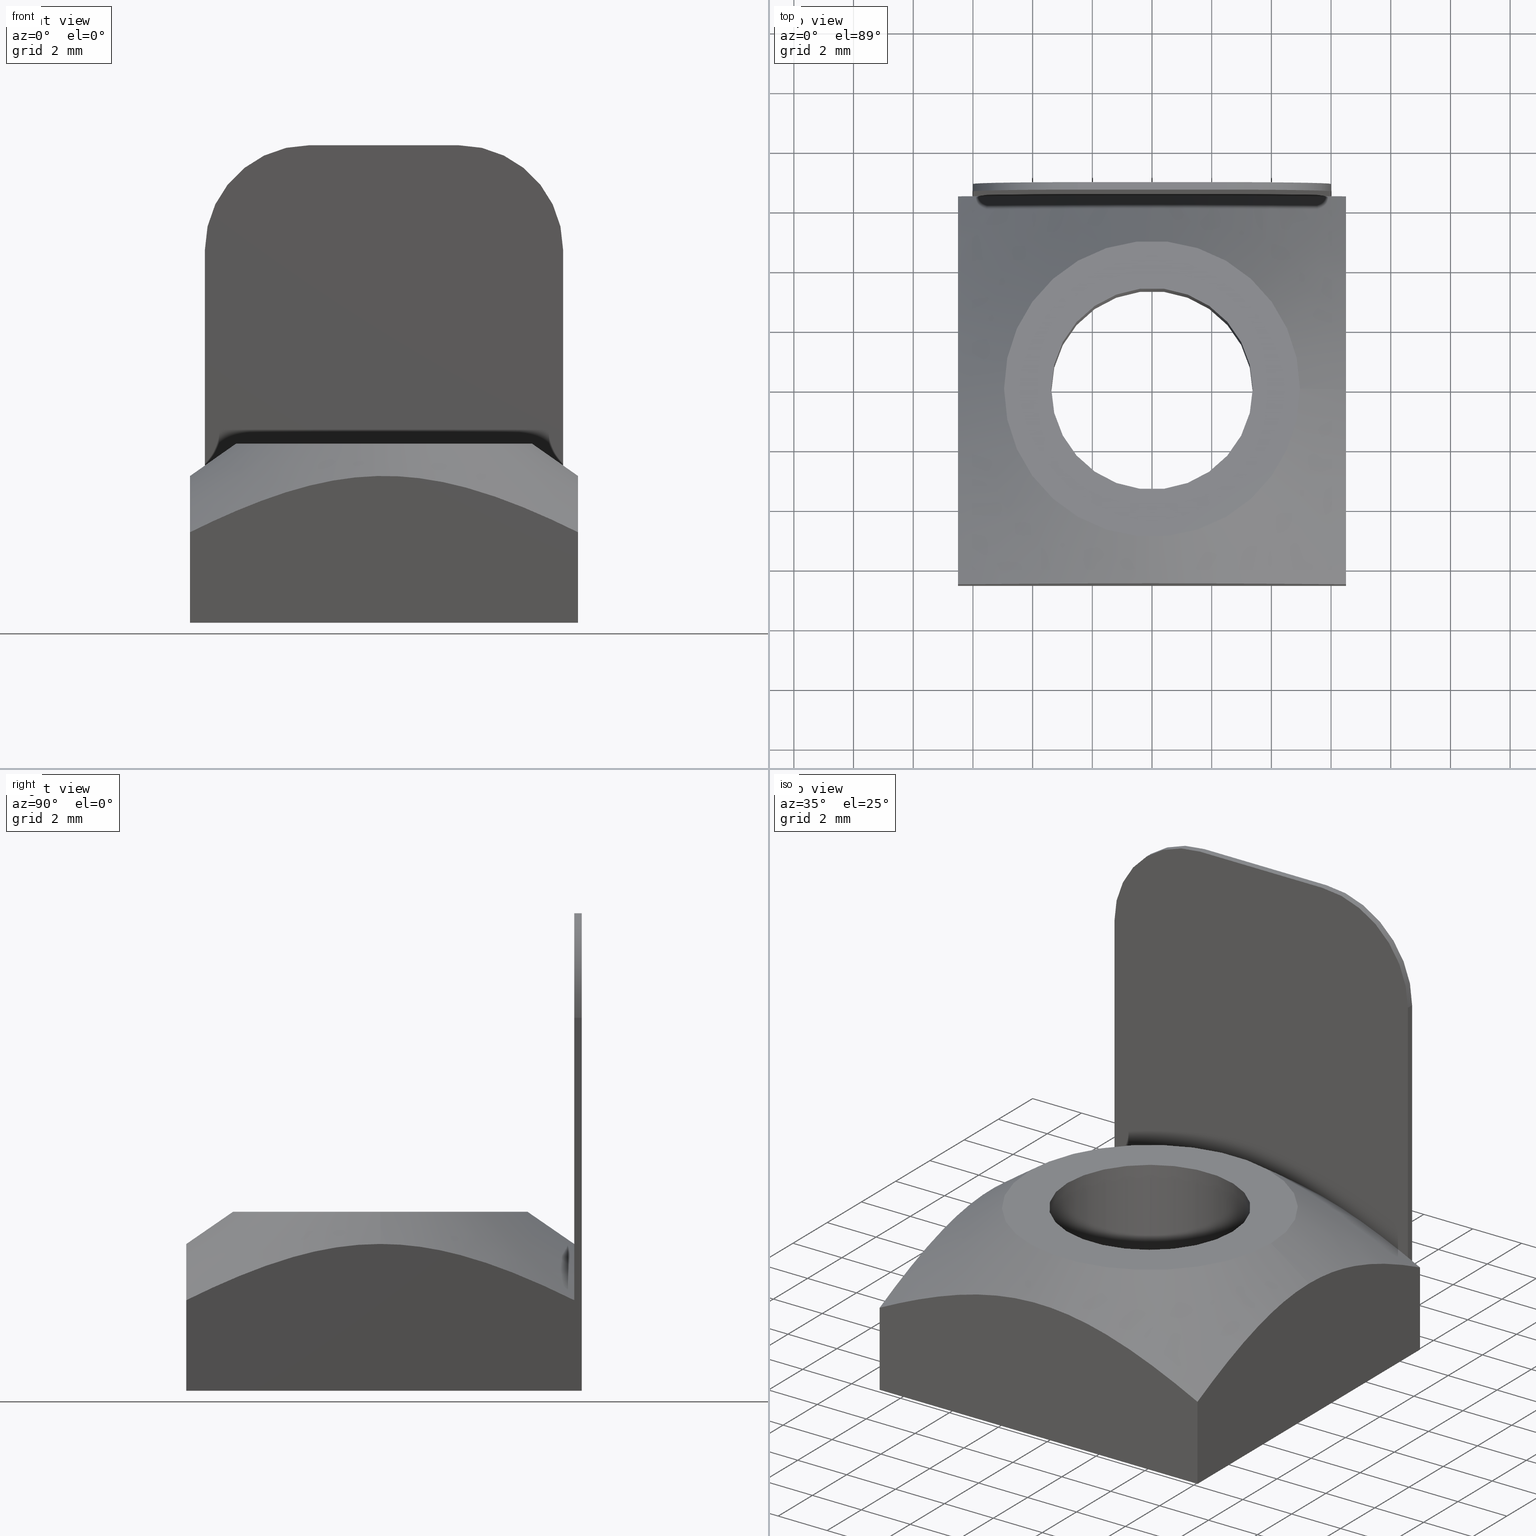
[diagram: canonical four-view strip — front | top / right | iso, engineering-drawing reading convention]
A machine part, canonical four-view strip (front | top / right | iso — engineering-drawing reading convention). The complete STEP part file that produces these views, byte-faithful:
ISO-10303-21;
HEADER;
/****************************************************************
 * Generated by software with PDE/Lib inside                    *
 * PDElib Version v4.4, created Mon 02/23/2004                  *
 * International Technegroup Inc. (www.iti-oh.com)              *
 ****************************************************************/
FILE_DESCRIPTION(('STEP AP203'),'2;1');
FILE_NAME('26.059.00.stp','2011-03-21T16:15:43',(''),(''),'2009.3.110','THINKDESIGN','');
FILE_SCHEMA(('CONFIG_CONTROL_DESIGN'));
ENDSEC;
DATA;
#2=CARTESIAN_POINT('',(-6.499999999973852,6.499999999974079,6.0));
#3=DIRECTION('',(1.0,0.0,0.0));
#4=DIRECTION('',(0.0,-1.0,0.0));
#5=AXIS2_PLACEMENT_3D('',#2,#3,#4);
#6=PLANE('',#5);
#7=CARTESIAN_POINT('',(-6.499999999973852,6.499999999974079,0.0));
#8=VERTEX_POINT('',#7);
#9=CARTESIAN_POINT('',(-6.499999999973852,-6.499999999974079,0.0));
#10=VERTEX_POINT('',#9);
#11=CARTESIAN_POINT('',(-6.499999999973852,6.499999999974079,0.0));
#12=DIRECTION('',(0.0,-1.0,0.0));
#13=VECTOR('',#12,12.999999999947995);
#14=LINE('',#11,#13);
#15=EDGE_CURVE('',#8,#10,#14,.T.);
#16=ORIENTED_EDGE('',*,*,#15,.T.);
#17=CARTESIAN_POINT('',(-6.499999999973852,-6.499999999974079,3.034437679604906));
#18=VERTEX_POINT('',#17);
#19=CARTESIAN_POINT('',(-6.499999999973852,-6.499999999974079,3.034437679604906));
#20=DIRECTION('',(0.0,0.0,-1.0));
#21=VECTOR('',#20,3.034437679604906);
#22=LINE('',#19,#21);
#23=EDGE_CURVE('',#18,#10,#22,.T.);
#24=ORIENTED_EDGE('',*,*,#23,.F.);
#25=CARTESIAN_POINT('',(-6.499999999973852,6.499999999974079,3.034437679605066));
#26=VERTEX_POINT('',#25);
#27=CARTESIAN_POINT('',(-6.499999999974079,-6.499999999974079,3.034437679604906));
#28=CARTESIAN_POINT('',(-6.499999999974079,-5.963475184198160,3.300082650377658));
#29=CARTESIAN_POINT('',(-6.499999999974307,-4.990047889132711,3.753273584885370));
#30=CARTESIAN_POINT('',(-6.499999999973625,-3.581020279305903,4.294954268033969));
#31=CARTESIAN_POINT('',(-6.499999999973397,-2.325183673445281,4.659603356991861));
#32=CARTESIAN_POINT('',(-6.499999999974307,-1.114697758100192,4.877442321284693));
#33=CARTESIAN_POINT('',(-6.499999999972943,0.091791976900822,4.946072576401956));
#34=CARTESIAN_POINT('',(-6.499999999977263,1.288091550248737,4.855365513273265));
#35=CARTESIAN_POINT('',(-6.499999999960892,2.551471572318405,4.605479998874939));
#36=CARTESIAN_POINT('',(-6.499999999977263,3.827364189698528,4.209600242583047));
#37=CARTESIAN_POINT('',(-6.499999999973170,5.174177651177615,3.668900488673288));
#38=CARTESIAN_POINT('',(-6.499999999973852,6.048409974866900,3.258029609546425));
#39=CARTESIAN_POINT('',(-6.499999999973852,6.499999999974079,3.034437679605066));
#40=B_SPLINE_CURVE_WITH_KNOTS('',3,(#27,#28,#29,#30,#31,#32,#33,#34,#35,#36,#37,#38,#39),.UNSPECIFIED.,.F.,.U.,(4,1,1,1,1,1,1,1,1,1,4),(0.0,1.796348609622032,3.219266909664040,4.525760464110747,5.714993134358735,6.903296288721289,8.143598724463887,9.306388059167453,10.761381849058354,12.146239828317164,13.658133343956399),.UNSPECIFIED.);
#41=EDGE_CURVE('',#18,#26,#40,.T.);
#42=ORIENTED_EDGE('',*,*,#41,.T.);
#43=CARTESIAN_POINT('',(-6.499999999973852,6.499999999974079,3.034437679605066));
#44=DIRECTION('',(0.0,0.0,-1.0));
#45=VECTOR('',#44,3.034437679605066);
#46=LINE('',#43,#45);
#47=EDGE_CURVE('',#26,#8,#46,.T.);
#48=ORIENTED_EDGE('',*,*,#47,.T.);
#49=EDGE_LOOP('',(#16,#24,#42,#48));
#50=FACE_OUTER_BOUND('',#49,.T.);
#51=ADVANCED_FACE('',(#50),#6,.F.);
#52=CARTESIAN_POINT('',(-6.499999999973852,-6.499999999974079,6.0));
#53=DIRECTION('',(0.0,1.0,0.0));
#54=DIRECTION('',(1.0,0.0,0.0));
#55=AXIS2_PLACEMENT_3D('',#52,#53,#54);
#56=PLANE('',#55);
#57=CARTESIAN_POINT('',(6.499999999974079,-6.499999999974079,0.0));
#58=VERTEX_POINT('',#57);
#59=CARTESIAN_POINT('',(-6.499999999973852,-6.499999999974079,0.0));
#60=DIRECTION('',(1.0,0.0,0.0));
#61=VECTOR('',#60,12.999999999947995);
#62=LINE('',#59,#61);
#63=EDGE_CURVE('',#10,#58,#62,.T.);
#64=ORIENTED_EDGE('',*,*,#63,.T.);
#65=CARTESIAN_POINT('',(6.499999999974079,-6.499999999974079,3.034437679604906));
#66=VERTEX_POINT('',#65);
#67=CARTESIAN_POINT('',(6.499999999974079,-6.499999999974079,3.034437679604906));
#68=DIRECTION('',(0.0,0.0,-1.0));
#69=VECTOR('',#68,3.034437679604906);
#70=LINE('',#67,#69);
#71=EDGE_CURVE('',#66,#58,#70,.T.);
#72=ORIENTED_EDGE('',*,*,#71,.F.);
#73=CARTESIAN_POINT('',(6.499999999974079,-6.499999999974079,3.034437679604906));
#74=CARTESIAN_POINT('',(5.963475184197932,-6.499999999974079,3.300082650377685));
#75=CARTESIAN_POINT('',(4.990047889131347,-6.499999999974534,3.753273584885145));
#76=CARTESIAN_POINT('',(3.581020279306358,-6.499999999973625,4.294954268034343));
#77=CARTESIAN_POINT('',(2.325183673444599,-6.499999999974989,4.659603356991499));
#78=CARTESIAN_POINT('',(1.114697758099510,-6.499999999973170,4.877442321284664));
#79=CARTESIAN_POINT('',(-0.091791976900140,-6.499999999974989,4.946072576401746));
#80=CARTESIAN_POINT('',(-1.288091550251238,-6.499999999977263,4.855365513273293));
#81=CARTESIAN_POINT('',(-2.551471572318178,-6.499999999962711,4.605479998874193));
#82=CARTESIAN_POINT('',(-3.827364189701029,-6.499999999977717,4.209600242582467));
#83=CARTESIAN_POINT('',(-5.174177651178525,-6.499999999973625,3.668900488673009));
#84=CARTESIAN_POINT('',(-6.048409974867354,-6.499999999974079,3.258029609546086));
#85=CARTESIAN_POINT('',(-6.499999999974079,-6.499999999974079,3.034437679604906));
#86=B_SPLINE_CURVE_WITH_KNOTS('',3,(#73,#74,#75,#76,#77,#78,#79,#80,#81,#82,#83,#84,#85),.UNSPECIFIED.,.F.,.U.,(4,1,1,1,1,1,1,1,1,1,4),(0.0,1.796348609622239,3.219266909664066,4.525760464110903,5.714993134359137,6.903296288721684,8.143598724464722,9.306388059168363,10.761381849059740,12.146239828318263,13.658133343956333),.UNSPECIFIED.);
#87=EDGE_CURVE('',#66,#18,#86,.T.);
#88=ORIENTED_EDGE('',*,*,#87,.T.);
#89=ORIENTED_EDGE('',*,*,#23,.T.);
#90=EDGE_LOOP('',(#64,#72,#88,#89));
#91=FACE_OUTER_BOUND('',#90,.T.);
#92=ADVANCED_FACE('',(#91),#56,.F.);
#93=CARTESIAN_POINT('',(6.499999999974079,-6.499999999974079,6.0));
#94=DIRECTION('',(-1.0,0.0,0.0));
#95=DIRECTION('',(0.0,1.0,0.0));
#96=AXIS2_PLACEMENT_3D('',#93,#94,#95);
#97=PLANE('',#96);
#98=CARTESIAN_POINT('',(6.499999999974079,6.499999999974079,0.0));
#99=VERTEX_POINT('',#98);
#100=CARTESIAN_POINT('',(6.499999999974079,-6.499999999973916,0.0));
#101=DIRECTION('',(0.0,1.0,0.0));
#102=VECTOR('',#101,12.999999999947995);
#103=LINE('',#100,#102);
#104=EDGE_CURVE('',#58,#99,#103,.T.);
#105=ORIENTED_EDGE('',*,*,#104,.T.);
#106=CARTESIAN_POINT('',(6.499999999974079,6.499999999974079,3.034437679604906));
#107=VERTEX_POINT('',#106);
#108=CARTESIAN_POINT('',(6.499999999974079,6.499999999974079,3.034437679604906));
#109=DIRECTION('',(0.0,0.0,-1.0));
#110=VECTOR('',#109,3.034437679604906);
#111=LINE('',#108,#110);
#112=EDGE_CURVE('',#107,#99,#111,.T.);
#113=ORIENTED_EDGE('',*,*,#112,.F.);
#114=CARTESIAN_POINT('',(6.499999999974079,0.0,4.919668161812596));
#115=VERTEX_POINT('',#114);
#116=CARTESIAN_POINT('',(6.499999999974079,6.499999999974079,3.034437679604906));
#117=CARTESIAN_POINT('',(6.499999999974079,5.882877524653850,3.339988284347234));
#118=CARTESIAN_POINT('',(6.499999999974534,4.809413192198008,3.835425012968807));
#119=CARTESIAN_POINT('',(6.499999999973852,3.186651324770082,4.430488239795752));
#120=CARTESIAN_POINT('',(6.499999999974989,1.644250270507200,4.819853950623344));
#121=CARTESIAN_POINT('',(6.499999999974079,0.548660503574865,4.919668161812595));
#122=CARTESIAN_POINT('',(6.499999999974079,0.0,4.919668161812595));
#123=B_SPLINE_CURVE_WITH_KNOTS('',3,(#116,#117,#118,#119,#120,#121,#122),.UNSPECIFIED.,.F.,.U.,(4,1,1,1,4),(0.0,2.066340973610342,3.543609594805800,5.181100455068718,6.829066620924860),.UNSPECIFIED.);
#124=EDGE_CURVE('',#107,#115,#123,.T.);
#125=ORIENTED_EDGE('',*,*,#124,.T.);
#126=CARTESIAN_POINT('',(6.499999999974079,0.0,4.919668161812595));
#127=CARTESIAN_POINT('',(6.499999999974079,-0.548660503574865,4.919668161812595));
#128=CARTESIAN_POINT('',(6.499999999974762,-1.644250270504926,4.819853950623344));
#129=CARTESIAN_POINT('',(6.499999999973852,-3.186651324770082,4.430488239795752));
#130=CARTESIAN_POINT('',(6.499999999974534,-4.809413192196644,3.835425012968807));
#131=CARTESIAN_POINT('',(6.499999999974079,-5.882877524653850,3.339988284347234));
#132=CARTESIAN_POINT('',(6.499999999974079,-6.499999999974079,3.034437679604906));
#133=B_SPLINE_CURVE_WITH_KNOTS('',3,(#126,#127,#128,#129,#130,#131,#132),.UNSPECIFIED.,.F.,.U.,(4,1,1,1,4),(0.0,1.647966165856141,3.285457026119058,4.762725647314515,6.829066620924857),.UNSPECIFIED.);
#134=EDGE_CURVE('',#115,#66,#133,.T.);
#135=ORIENTED_EDGE('',*,*,#134,.T.);
#136=ORIENTED_EDGE('',*,*,#71,.T.);
#137=EDGE_LOOP('',(#105,#113,#125,#135,#136));
#138=FACE_OUTER_BOUND('',#137,.T.);
#139=ADVANCED_FACE('',(#138),#97,.F.);
#140=CARTESIAN_POINT('',(6.499999999974079,6.499999999974079,6.0));
#141=DIRECTION('',(0.0,-1.0,0.0));
#142=DIRECTION('',(-1.0,0.0,0.0));
#143=AXIS2_PLACEMENT_3D('',#140,#141,#142);
#144=PLANE('',#143);
#145=ORIENTED_EDGE('',*,*,#47,.F.);
#146=CARTESIAN_POINT('',(-6.499999999973852,6.499999999974079,3.034437679605066));
#147=CARTESIAN_POINT('',(-6.048409974867354,6.499999999974079,3.258029609546206));
#148=CARTESIAN_POINT('',(-5.174177651177615,6.499999999972715,3.668900488673024));
#149=CARTESIAN_POINT('',(-3.827364189701939,6.499999999976353,4.209600242582472));
#150=CARTESIAN_POINT('',(-2.551471572317269,6.499999999962711,4.605479998874186));
#151=CARTESIAN_POINT('',(-1.288091550251011,6.499999999977263,4.855365513273293));
#152=CARTESIAN_POINT('',(-0.091791976899913,6.499999999974534,4.946072576401746));
#153=CARTESIAN_POINT('',(1.114697758099283,6.499999999973170,4.877442321284664));
#154=CARTESIAN_POINT('',(2.325183673445054,6.499999999974989,4.659603356991500));
#155=CARTESIAN_POINT('',(3.581020279306813,6.499999999974079,4.294954268034344));
#156=CARTESIAN_POINT('',(4.990047889131802,6.499999999974534,3.753273584885147));
#157=CARTESIAN_POINT('',(5.963475184197932,6.499999999974079,3.300082650377685));
#158=CARTESIAN_POINT('',(6.499999999974079,6.499999999974079,3.034437679604906));
#159=B_SPLINE_CURVE_WITH_KNOTS('',3,(#146,#147,#148,#149,#150,#151,#152,#153,#154,#155,#156,#157,#158),.UNSPECIFIED.,.F.,.U.,(4,1,1,1,1,1,1,1,1,1,4),(0.0,1.511893515637792,2.896751494896321,4.351745284787702,5.514534619491342,6.754837055234381,7.943140209596928,9.132372879845162,10.438866434292001,11.861784734333828,13.658133343956067),.UNSPECIFIED.);
#160=EDGE_CURVE('',#26,#107,#159,.T.);
#161=ORIENTED_EDGE('',*,*,#160,.T.);
#162=ORIENTED_EDGE('',*,*,#112,.T.);
#163=CARTESIAN_POINT('',(6.499999999974143,6.499999999974079,0.0));
#164=DIRECTION('',(-1.0,0.0,0.0));
#165=VECTOR('',#164,12.999999999947995);
#166=LINE('',#163,#165);
#167=EDGE_CURVE('',#99,#8,#166,.T.);
#168=ORIENTED_EDGE('',*,*,#167,.T.);
#169=EDGE_LOOP('',(#145,#161,#162,#168));
#170=FACE_OUTER_BOUND('',#169,.T.);
#171=ADVANCED_FACE('',(#170),#144,.F.);
#172=CARTESIAN_POINT('',(-7.800004734302775,-7.800004734271170,6.0));
#173=DIRECTION('',(0.0,0.0,1.0));
#174=DIRECTION('',(1.0,0.0,0.0));
#175=AXIS2_PLACEMENT_3D('',#172,#173,#174);
#176=PLANE('',#175);
#177=CARTESIAN_POINT('',(-4.957126238646652,0.0,6.0));
#178=VERTEX_POINT('',#177);
#179=CARTESIAN_POINT('',(4.957126238646652,0.0,6.0));
#180=VERTEX_POINT('',#179);
#181=CARTESIAN_POINT('',(0.0,0.0,6.0));
#182=DIRECTION('',(0.0,0.0,-1.0));
#183=DIRECTION('',(1.0,0.0,0.0));
#184=AXIS2_PLACEMENT_3D('',#181,#182,#183);
#185=CIRCLE('',#184,4.957126238646652);
#186=EDGE_CURVE('',#178,#180,#185,.T.);
#187=ORIENTED_EDGE('',*,*,#186,.F.);
#188=CARTESIAN_POINT('',(0.0,0.0,6.0));
#189=DIRECTION('',(0.0,0.0,-1.0));
#190=DIRECTION('',(1.0,0.0,0.0));
#191=AXIS2_PLACEMENT_3D('',#188,#189,#190);
#192=CIRCLE('',#191,4.957126238646652);
#193=EDGE_CURVE('',#180,#178,#192,.T.);
#194=ORIENTED_EDGE('',*,*,#193,.F.);
#195=EDGE_LOOP('',(#187,#194));
#196=FACE_OUTER_BOUND('',#195,.T.);
#197=CARTESIAN_POINT('',(-3.375000000000000,0.0,6.0));
#198=VERTEX_POINT('',#197);
#199=CARTESIAN_POINT('',(3.375000000000000,0.0,6.0));
#200=VERTEX_POINT('',#199);
#201=CARTESIAN_POINT('',(0.0,0.0,6.0));
#202=DIRECTION('',(0.0,0.0,1.0));
#203=DIRECTION('',(1.0,0.0,0.0));
#204=AXIS2_PLACEMENT_3D('',#201,#202,#203);
#205=CIRCLE('',#204,3.375000000000000);
#206=EDGE_CURVE('',#198,#200,#205,.T.);
#207=ORIENTED_EDGE('',*,*,#206,.F.);
#208=CARTESIAN_POINT('',(0.0,0.0,6.0));
#209=DIRECTION('',(0.0,0.0,1.0));
#210=DIRECTION('',(1.0,0.0,0.0));
#211=AXIS2_PLACEMENT_3D('',#208,#209,#210);
#212=CIRCLE('',#211,3.375000000000000);
#213=EDGE_CURVE('',#200,#198,#212,.T.);
#214=ORIENTED_EDGE('',*,*,#213,.F.);
#215=EDGE_LOOP('',(#207,#214));
#216=FACE_BOUND('',#215,.T.);
#217=ADVANCED_FACE('',(#196,#216),#176,.T.);
#218=CARTESIAN_POINT('',(-7.800004734302775,-7.800004734271170,0.0));
#219=DIRECTION('',(0.0,0.0,1.0));
#220=DIRECTION('',(1.0,0.0,0.0));
#221=AXIS2_PLACEMENT_3D('',#218,#219,#220);
#222=PLANE('',#221);
#223=ORIENTED_EDGE('',*,*,#167,.F.);
#224=ORIENTED_EDGE('',*,*,#104,.F.);
#225=ORIENTED_EDGE('',*,*,#63,.F.);
#226=ORIENTED_EDGE('',*,*,#15,.F.);
#227=EDGE_LOOP('',(#223,#224,#225,#226));
#228=FACE_OUTER_BOUND('',#227,.T.);
#229=CARTESIAN_POINT('',(-3.375000000000000,0.0,0.0));
#230=VERTEX_POINT('',#229);
#231=CARTESIAN_POINT('',(3.375000000000000,0.0,0.0));
#232=VERTEX_POINT('',#231);
#233=CARTESIAN_POINT('',(0.0,0.0,0.0));
#234=DIRECTION('',(0.0,0.0,-1.0));
#235=DIRECTION('',(1.0,0.0,0.0));
#236=AXIS2_PLACEMENT_3D('',#233,#234,#235);
#237=CIRCLE('',#236,3.375000000000000);
#238=EDGE_CURVE('',#230,#232,#237,.T.);
#239=ORIENTED_EDGE('',*,*,#238,.F.);
#240=CARTESIAN_POINT('',(0.0,0.0,0.0));
#241=DIRECTION('',(0.0,0.0,-1.0));
#242=DIRECTION('',(1.0,0.0,0.0));
#243=AXIS2_PLACEMENT_3D('',#240,#241,#242);
#244=CIRCLE('',#243,3.375000000000000);
#245=EDGE_CURVE('',#232,#230,#244,.T.);
#246=ORIENTED_EDGE('',*,*,#245,.F.);
#247=EDGE_LOOP('',(#239,#246));
#248=FACE_BOUND('',#247,.T.);
#249=ADVANCED_FACE('',(#228,#248),#222,.F.);
#250=CARTESIAN_POINT('',(4.957126238621409,0.0,6.000000000017701));
#251=CARTESIAN_POINT('',(4.957126238621409,4.957126238621409,6.000000000017701));
#252=CARTESIAN_POINT('',(0.0,4.957126238621409,6.000000000017701));
#253=CARTESIAN_POINT('',(-4.957126238621409,4.957126238621409,6.000000000017701));
#254=CARTESIAN_POINT('',(-4.957126238621409,0.0,6.000000000017701));
#255=CARTESIAN_POINT('',(-4.957126238621409,-4.957126238621409,6.000000000017701));
#256=CARTESIAN_POINT('',(0.0,-4.957126238621409,6.000000000017701));
#257=CARTESIAN_POINT('',(4.957126238621409,-4.957126238621409,6.000000000017701));
#258=CARTESIAN_POINT('',(4.957126238621409,0.0,6.000000000017701));
#259=CARTESIAN_POINT('',(9.192391315225684,0.0,3.034435467063071));
#260=CARTESIAN_POINT('',(9.192391315225684,9.192391315225684,3.034435467063072));
#261=CARTESIAN_POINT('',(0.0,9.192391315225684,3.034435467063071));
#262=CARTESIAN_POINT('',(-9.192391315225684,9.192391315225684,3.034435467063072));
#263=CARTESIAN_POINT('',(-9.192391315225684,0.0,3.034435467063071));
#264=CARTESIAN_POINT('',(-9.192391315225684,-9.192391315225684,3.034435467063072));
#265=CARTESIAN_POINT('',(0.0,-9.192391315225684,3.034435467063071));
#266=CARTESIAN_POINT('',(9.192391315225684,-9.192391315225684,3.034435467063072));
#267=CARTESIAN_POINT('',(9.192391315225684,0.0,3.034435467063071));
#275=(BOUNDED_SURFACE()B_SPLINE_SURFACE(2,1,((#250,#259),(#251,#260),(#252,#261),(#253,#262),(#254,#263),(#255,#264),(#256,#265),(#257,#266),(#258,#267)),.UNSPECIFIED.,.T.,.F.,.U.)B_SPLINE_SURFACE_WITH_KNOTS((3,2,2,2,3),(2,2),(0.0,0.250000000000000,0.500000000000000,0.750000000000000,1.0),(-6.833350498853780,-1.663046516666443),.UNSPECIFIED.)GEOMETRIC_REPRESENTATION_ITEM()RATIONAL_B_SPLINE_SURFACE(((1.0,1.0),(0.707106781186548,0.707106781186548),(1.0,1.0),(0.707106781186548,0.707106781186548),(1.0,1.0),(0.707106781186548,0.707106781186548),(1.0,1.0),(0.707106781186548,0.707106781186548),(1.0,1.0)))REPRESENTATION_ITEM('')SURFACE());
#276=ORIENTED_EDGE('',*,*,#160,.F.);
#277=ORIENTED_EDGE('',*,*,#41,.F.);
#278=ORIENTED_EDGE('',*,*,#87,.F.);
#279=ORIENTED_EDGE('',*,*,#134,.F.);
#280=CARTESIAN_POINT('',(4.957126238646688,0.0,6.0));
#281=DIRECTION('',(0.819152044288992,0.0,-0.573576436351045));
#282=VECTOR('',#281,1.883501081495284);
#283=LINE('',#280,#282);
#284=EDGE_CURVE('',#180,#115,#283,.T.);
#285=ORIENTED_EDGE('',*,*,#284,.F.);
#286=ORIENTED_EDGE('',*,*,#193,.T.);
#287=ORIENTED_EDGE('',*,*,#186,.T.);
#288=ORIENTED_EDGE('',*,*,#284,.T.);
#289=ORIENTED_EDGE('',*,*,#124,.F.);
#290=EDGE_LOOP('',(#276,#277,#278,#279,#285,#286,#287,#288,#289));
#291=FACE_OUTER_BOUND('',#290,.T.);
#292=ADVANCED_FACE('',(#291),#275,.F.);
#293=CARTESIAN_POINT('',(0.0,0.0,6.0));
#294=DIRECTION('',(0.0,0.0,1.0));
#295=DIRECTION('',(1.0,0.0,0.0));
#296=AXIS2_PLACEMENT_3D('',#293,#294,#295);
#297=CYLINDRICAL_SURFACE('',#296,3.375000000000000);
#298=CARTESIAN_POINT('',(3.375000000000000,0.0,6.0));
#299=DIRECTION('',(0.0,0.0,-1.0));
#300=VECTOR('',#299,6.0);
#301=LINE('',#298,#300);
#302=EDGE_CURVE('',#200,#232,#301,.T.);
#303=ORIENTED_EDGE('',*,*,#302,.T.);
#304=ORIENTED_EDGE('',*,*,#245,.T.);
#305=ORIENTED_EDGE('',*,*,#238,.T.);
#306=ORIENTED_EDGE('',*,*,#302,.F.);
#307=ORIENTED_EDGE('',*,*,#213,.T.);
#308=ORIENTED_EDGE('',*,*,#206,.T.);
#309=EDGE_LOOP('',(#303,#304,#305,#306,#307,#308));
#310=FACE_OUTER_BOUND('',#309,.T.);
#311=ADVANCED_FACE('',(#310),#297,.F.);
#312=CLOSED_SHELL('',(#51,#92,#139,#171,#217,#249,#292,#311));
#313=MANIFOLD_SOLID_BREP('',#312);
#314=CARTESIAN_POINT('',(-2.499999999999773,6.499999999974079,12.500000000000000));
#315=DIRECTION('',(0.0,1.0,0.0));
#316=DIRECTION('',(-1.0,0.0,6.123234E-017));
#317=AXIS2_PLACEMENT_3D('',#314,#315,#316);
#318=CYLINDRICAL_SURFACE('',#317,3.500000000000000);
#319=CARTESIAN_POINT('',(-5.999999999999773,6.499999999974079,12.500000000000000));
#320=VERTEX_POINT('',#319);
#321=CARTESIAN_POINT('',(-2.499999999999773,6.499999999974079,16.0));
#322=VERTEX_POINT('',#321);
#323=CARTESIAN_POINT('',(-2.499999999999773,6.499999999974079,12.500000000000000));
#324=DIRECTION('',(0.0,1.0,0.0));
#325=DIRECTION('',(0.0,0.0,1.0));
#326=AXIS2_PLACEMENT_3D('',#323,#324,#325);
#327=CIRCLE('',#326,3.500000000000000);
#328=EDGE_CURVE('',#320,#322,#327,.T.);
#329=ORIENTED_EDGE('',*,*,#328,.T.);
#330=CARTESIAN_POINT('',(-2.499999999999773,6.749999999974079,16.0));
#331=VERTEX_POINT('',#330);
#332=CARTESIAN_POINT('',(-2.499999999999773,6.499999999974079,16.0));
#333=DIRECTION('',(0.0,1.0,0.0));
#334=VECTOR('',#333,0.250000000000000);
#335=LINE('',#332,#334);
#336=EDGE_CURVE('',#322,#331,#335,.T.);
#337=ORIENTED_EDGE('',*,*,#336,.T.);
#338=CARTESIAN_POINT('',(-5.999999999999773,6.749999999974079,12.500000000000000));
#339=VERTEX_POINT('',#338);
#340=CARTESIAN_POINT('',(-2.499999999999773,6.749999999974079,12.500000000000000));
#341=DIRECTION('',(0.0,1.0,0.0));
#342=DIRECTION('',(0.0,0.0,1.0));
#343=AXIS2_PLACEMENT_3D('',#340,#341,#342);
#344=CIRCLE('',#343,3.500000000000000);
#345=EDGE_CURVE('',#339,#331,#344,.T.);
#346=ORIENTED_EDGE('',*,*,#345,.F.);
#347=CARTESIAN_POINT('',(-5.999999999999773,6.499999999974079,12.500000000000000));
#348=DIRECTION('',(0.0,1.0,0.0));
#349=VECTOR('',#348,0.250000000000000);
#350=LINE('',#347,#349);
#351=EDGE_CURVE('',#320,#339,#350,.T.);
#352=ORIENTED_EDGE('',*,*,#351,.F.);
#353=EDGE_LOOP('',(#329,#337,#346,#352));
#354=FACE_OUTER_BOUND('',#353,.T.);
#355=ADVANCED_FACE('',(#354),#318,.T.);
#356=CARTESIAN_POINT('',(-2.499999999999773,6.499999999974079,16.0));
#357=DIRECTION('',(0.0,0.0,1.0));
#358=DIRECTION('',(1.0,0.0,0.0));
#359=AXIS2_PLACEMENT_3D('',#356,#357,#358);
#360=PLANE('',#359);
#361=CARTESIAN_POINT('',(2.500000000000227,6.499999999974079,16.0));
#362=VERTEX_POINT('',#361);
#363=CARTESIAN_POINT('',(-2.499999999999773,6.499999999974079,16.0));
#364=DIRECTION('',(1.0,0.0,0.0));
#365=VECTOR('',#364,5.0);
#366=LINE('',#363,#365);
#367=EDGE_CURVE('',#322,#362,#366,.T.);
#368=ORIENTED_EDGE('',*,*,#367,.T.);
#369=CARTESIAN_POINT('',(2.500000000000227,6.749999999974079,16.0));
#370=VERTEX_POINT('',#369);
#371=CARTESIAN_POINT('',(2.500000000000227,6.499999999974079,16.0));
#372=DIRECTION('',(0.0,1.0,0.0));
#373=VECTOR('',#372,0.250000000000000);
#374=LINE('',#371,#373);
#375=EDGE_CURVE('',#362,#370,#374,.T.);
#376=ORIENTED_EDGE('',*,*,#375,.T.);
#377=CARTESIAN_POINT('',(-2.499999999999773,6.749999999974079,16.0));
#378=DIRECTION('',(1.0,0.0,0.0));
#379=VECTOR('',#378,5.0);
#380=LINE('',#377,#379);
#381=EDGE_CURVE('',#331,#370,#380,.T.);
#382=ORIENTED_EDGE('',*,*,#381,.F.);
#383=ORIENTED_EDGE('',*,*,#336,.F.);
#384=EDGE_LOOP('',(#368,#376,#382,#383));
#385=FACE_OUTER_BOUND('',#384,.T.);
#386=ADVANCED_FACE('',(#385),#360,.T.);
#387=CARTESIAN_POINT('',(2.500000000000227,6.499999999974079,12.500000000000000));
#388=DIRECTION('',(0.0,1.0,0.0));
#389=DIRECTION('',(6.123234E-017,0.0,1.0));
#390=AXIS2_PLACEMENT_3D('',#387,#388,#389);
#391=CYLINDRICAL_SURFACE('',#390,3.500000000000000);
#392=CARTESIAN_POINT('',(6.000000000000227,6.499999999974079,12.500000000000000));
#393=VERTEX_POINT('',#392);
#394=CARTESIAN_POINT('',(2.500000000000227,6.499999999974079,12.500000000000000));
#395=DIRECTION('',(0.0,1.0,0.0));
#396=DIRECTION('',(1.0,0.0,0.0));
#397=AXIS2_PLACEMENT_3D('',#394,#395,#396);
#398=CIRCLE('',#397,3.500000000000000);
#399=EDGE_CURVE('',#362,#393,#398,.T.);
#400=ORIENTED_EDGE('',*,*,#399,.T.);
#401=CARTESIAN_POINT('',(6.000000000000227,6.749999999974079,12.500000000000000));
#402=VERTEX_POINT('',#401);
#403=CARTESIAN_POINT('',(6.000000000000227,6.499999999974079,12.500000000000000));
#404=DIRECTION('',(0.0,1.0,0.0));
#405=VECTOR('',#404,0.250000000000000);
#406=LINE('',#403,#405);
#407=EDGE_CURVE('',#393,#402,#406,.T.);
#408=ORIENTED_EDGE('',*,*,#407,.T.);
#409=CARTESIAN_POINT('',(2.500000000000227,6.749999999974079,12.500000000000000));
#410=DIRECTION('',(0.0,1.0,0.0));
#411=DIRECTION('',(1.0,0.0,0.0));
#412=AXIS2_PLACEMENT_3D('',#409,#410,#411);
#413=CIRCLE('',#412,3.500000000000000);
#414=EDGE_CURVE('',#370,#402,#413,.T.);
#415=ORIENTED_EDGE('',*,*,#414,.F.);
#416=ORIENTED_EDGE('',*,*,#375,.F.);
#417=EDGE_LOOP('',(#400,#408,#415,#416));
#418=FACE_OUTER_BOUND('',#417,.T.);
#419=ADVANCED_FACE('',(#418),#391,.T.);
#420=CARTESIAN_POINT('',(6.000000000000227,6.499999999974079,12.500000000000000));
#421=DIRECTION('',(1.0,0.0,0.0));
#422=DIRECTION('',(0.0,0.0,-1.0));
#423=AXIS2_PLACEMENT_3D('',#420,#421,#422);
#424=PLANE('',#423);
#425=CARTESIAN_POINT('',(6.000000000000227,6.499999999974079,1.776357E-015));
#426=VERTEX_POINT('',#425);
#427=CARTESIAN_POINT('',(6.000000000000227,6.499999999974079,12.500000000000000));
#428=DIRECTION('',(0.0,0.0,-1.0));
#429=VECTOR('',#428,12.499999999999998);
#430=LINE('',#427,#429);
#431=EDGE_CURVE('',#393,#426,#430,.T.);
#432=ORIENTED_EDGE('',*,*,#431,.T.);
#433=CARTESIAN_POINT('',(6.000000000000227,6.749999999974079,1.776357E-015));
#434=VERTEX_POINT('',#433);
#435=CARTESIAN_POINT('',(6.000000000000227,6.499999999974079,1.776357E-015));
#436=DIRECTION('',(0.0,1.0,0.0));
#437=VECTOR('',#436,0.250000000000000);
#438=LINE('',#435,#437);
#439=EDGE_CURVE('',#426,#434,#438,.T.);
#440=ORIENTED_EDGE('',*,*,#439,.T.);
#441=CARTESIAN_POINT('',(6.000000000000227,6.749999999974079,12.500000000000000));
#442=DIRECTION('',(0.0,0.0,-1.0));
#443=VECTOR('',#442,12.499999999999998);
#444=LINE('',#441,#443);
#445=EDGE_CURVE('',#402,#434,#444,.T.);
#446=ORIENTED_EDGE('',*,*,#445,.F.);
#447=ORIENTED_EDGE('',*,*,#407,.F.);
#448=EDGE_LOOP('',(#432,#440,#446,#447));
#449=FACE_OUTER_BOUND('',#448,.T.);
#450=ADVANCED_FACE('',(#449),#424,.T.);
#451=CARTESIAN_POINT('',(6.000000000000227,6.499999999974079,1.776357E-015));
#452=DIRECTION('',(0.0,0.0,-1.0));
#453=DIRECTION('',(-1.0,0.0,0.0));
#454=AXIS2_PLACEMENT_3D('',#451,#452,#453);
#455=PLANE('',#454);
#456=CARTESIAN_POINT('',(-5.999999999999773,6.499999999974079,0.0));
#457=VERTEX_POINT('',#456);
#458=CARTESIAN_POINT('',(6.000000000000227,6.499999999974079,1.513940E-015));
#459=DIRECTION('',(-1.0,0.0,0.0));
#460=VECTOR('',#459,12.0);
#461=LINE('',#458,#460);
#462=EDGE_CURVE('',#426,#457,#461,.T.);
#463=ORIENTED_EDGE('',*,*,#462,.T.);
#464=CARTESIAN_POINT('',(-5.999999999999773,6.749999999974079,0.0));
#465=VERTEX_POINT('',#464);
#466=CARTESIAN_POINT('',(-5.999999999999773,6.499999999974079,0.0));
#467=DIRECTION('',(0.0,1.0,0.0));
#468=VECTOR('',#467,0.250000000000000);
#469=LINE('',#466,#468);
#470=EDGE_CURVE('',#457,#465,#469,.T.);
#471=ORIENTED_EDGE('',*,*,#470,.T.);
#472=CARTESIAN_POINT('',(6.000000000000227,6.749999999974079,1.513940E-015));
#473=DIRECTION('',(-1.0,0.0,0.0));
#474=VECTOR('',#473,12.0);
#475=LINE('',#472,#474);
#476=EDGE_CURVE('',#434,#465,#475,.T.);
#477=ORIENTED_EDGE('',*,*,#476,.F.);
#478=ORIENTED_EDGE('',*,*,#439,.F.);
#479=EDGE_LOOP('',(#463,#471,#477,#478));
#480=FACE_OUTER_BOUND('',#479,.T.);
#481=ADVANCED_FACE('',(#480),#455,.T.);
#482=CARTESIAN_POINT('',(-5.999999999999773,6.499999999974079,0.0));
#483=DIRECTION('',(-1.0,0.0,0.0));
#484=DIRECTION('',(0.0,0.0,1.0));
#485=AXIS2_PLACEMENT_3D('',#482,#483,#484);
#486=PLANE('',#485);
#487=CARTESIAN_POINT('',(-5.999999999999773,6.499999999974079,0.0));
#488=DIRECTION('',(0.0,0.0,1.0));
#489=VECTOR('',#488,12.500000000000000);
#490=LINE('',#487,#489);
#491=EDGE_CURVE('',#457,#320,#490,.T.);
#492=ORIENTED_EDGE('',*,*,#491,.T.);
#493=ORIENTED_EDGE('',*,*,#351,.T.);
#494=CARTESIAN_POINT('',(-5.999999999999773,6.749999999974079,0.0));
#495=DIRECTION('',(0.0,0.0,1.0));
#496=VECTOR('',#495,12.500000000000000);
#497=LINE('',#494,#496);
#498=EDGE_CURVE('',#465,#339,#497,.T.);
#499=ORIENTED_EDGE('',*,*,#498,.F.);
#500=ORIENTED_EDGE('',*,*,#470,.F.);
#501=EDGE_LOOP('',(#492,#493,#499,#500));
#502=FACE_OUTER_BOUND('',#501,.T.);
#503=ADVANCED_FACE('',(#502),#486,.T.);
#504=CARTESIAN_POINT('',(7.200042625428978,6.499999999974079,-1.600042625411713));
#505=DIRECTION('',(0.0,1.0,0.0));
#506=DIRECTION('',(-1.0,0.0,0.0));
#507=AXIS2_PLACEMENT_3D('',#504,#505,#506);
#508=PLANE('',#507);
#509=ORIENTED_EDGE('',*,*,#491,.F.);
#510=ORIENTED_EDGE('',*,*,#462,.F.);
#511=ORIENTED_EDGE('',*,*,#431,.F.);
#512=ORIENTED_EDGE('',*,*,#399,.F.);
#513=ORIENTED_EDGE('',*,*,#367,.F.);
#514=ORIENTED_EDGE('',*,*,#328,.F.);
#515=EDGE_LOOP('',(#509,#510,#511,#512,#513,#514));
#516=FACE_OUTER_BOUND('',#515,.T.);
#517=ADVANCED_FACE('',(#516),#508,.F.);
#518=CARTESIAN_POINT('',(7.200042625428978,6.749999999974079,-1.600042625411713));
#519=DIRECTION('',(0.0,1.0,0.0));
#520=DIRECTION('',(-1.0,0.0,0.0));
#521=AXIS2_PLACEMENT_3D('',#518,#519,#520);
#522=PLANE('',#521);
#523=ORIENTED_EDGE('',*,*,#345,.T.);
#524=ORIENTED_EDGE('',*,*,#381,.T.);
#525=ORIENTED_EDGE('',*,*,#414,.T.);
#526=ORIENTED_EDGE('',*,*,#445,.T.);
#527=ORIENTED_EDGE('',*,*,#476,.T.);
#528=ORIENTED_EDGE('',*,*,#498,.T.);
#529=EDGE_LOOP('',(#523,#524,#525,#526,#527,#528));
#530=FACE_OUTER_BOUND('',#529,.T.);
#531=ADVANCED_FACE('',(#530),#522,.T.);
#532=CLOSED_SHELL('',(#355,#386,#419,#450,#481,#503,#517,#531));
#533=MANIFOLD_SOLID_BREP('',#532);
#539=(NAMED_UNIT(*)PLANE_ANGLE_UNIT()SI_UNIT($,.RADIAN.));
#540=DIMENSIONAL_EXPONENTS(0.0,0.0,0.0,0.0,0.0,0.0,0.0);
#541=PLANE_ANGLE_MEASURE_WITH_UNIT(PLANE_ANGLE_MEASURE(0.017453292500000),#539);
#545=(CONVERSION_BASED_UNIT('DEGREE',#541)NAMED_UNIT(#540)PLANE_ANGLE_UNIT());
#549=(NAMED_UNIT(*)SI_UNIT($,.STERADIAN.)SOLID_ANGLE_UNIT());
#553=(LENGTH_UNIT()NAMED_UNIT(*)SI_UNIT(.MILLI.,.METRE.));
#555=UNCERTAINTY_MEASURE_WITH_UNIT(LENGTH_MEASURE(0.001000000000000),#553,'DISTANCE_ACCURACY_VALUE','');
#557=(GEOMETRIC_REPRESENTATION_CONTEXT(3)GLOBAL_UNCERTAINTY_ASSIGNED_CONTEXT((#555))GLOBAL_UNIT_ASSIGNED_CONTEXT((#545,#549,#553))REPRESENTATION_CONTEXT('thinkdesign','2009.3.110'));
#558=ADVANCED_BREP_SHAPE_REPRESENTATION('',(#313,#533),#557);
#559=APPLICATION_CONTEXT('configuration controlled 3D designs of mechanical parts and assemblies');
#560=APPLICATION_PROTOCOL_DEFINITION('International Standard','config_control_design',1995,#559);
#561=MECHANICAL_CONTEXT('None',#559,'mechanical');
#562=PRODUCT('None','None','None',(#561));
#563=PRODUCT_RELATED_PRODUCT_CATEGORY('detail',$,(#562));
#564=PRODUCT_CATEGORY('part',$);
#565=PRODUCT_CATEGORY_RELATIONSHIP('None','None',#564,#563);
#566=PERSON('PERSON1','None','None',$,$,$);
#567=ORGANIZATION('','None','None');
#568=PERSON_AND_ORGANIZATION(#566,#567);
#569=PERSON_AND_ORGANIZATION_ROLE('design_owner');
#570=CC_DESIGN_PERSON_AND_ORGANIZATION_ASSIGNMENT(#568,#569,(#562));
#571=PRODUCT_DEFINITION_FORMATION_WITH_SPECIFIED_SOURCE('None','None',#562,.NOT_KNOWN.);
#572=PERSON('PERSON2','None','None',$,$,$);
#573=ORGANIZATION('','None','None');
#574=PERSON_AND_ORGANIZATION(#572,#573);
#575=PERSON_AND_ORGANIZATION_ROLE('creator');
#576=CC_DESIGN_PERSON_AND_ORGANIZATION_ASSIGNMENT(#574,#575,(#571));
#577=PERSON('PERSON3','None','None',$,$,$);
#578=ORGANIZATION('','None','None');
#579=PERSON_AND_ORGANIZATION(#577,#578);
#580=PERSON_AND_ORGANIZATION_ROLE('part_supplier');
#581=CC_DESIGN_PERSON_AND_ORGANIZATION_ASSIGNMENT(#579,#580,(#571));
#582=APPROVAL_STATUS('approved');
#583=APPROVAL(#582,'None');
#584=PERSON('PERSON4','None','None',$,$,$);
#585=ORGANIZATION('','None','None');
#586=PERSON_AND_ORGANIZATION(#584,#585);
#587=APPROVAL_ROLE('None');
#588=APPROVAL_PERSON_ORGANIZATION(#586,#583,#587);
#589=CALENDAR_DATE(2011,21,3);
#590=COORDINATED_UNIVERSAL_TIME_OFFSET(0,0,.AHEAD.);
#591=LOCAL_TIME(16,15,43.0,#590);
#592=DATE_AND_TIME(#589,#591);
#593=APPROVAL_DATE_TIME(#592,#583);
#594=CC_DESIGN_APPROVAL(#583,(#571));
#595=SECURITY_CLASSIFICATION_LEVEL('unclassified');
#596=SECURITY_CLASSIFICATION('None','None',#595);
#597=CC_DESIGN_SECURITY_CLASSIFICATION(#596,(#571));
#598=APPROVAL_STATUS('approved');
#599=APPROVAL(#598,'None');
#600=PERSON('PERSON5','None','None',$,$,$);
#601=ORGANIZATION('','None','None');
#602=PERSON_AND_ORGANIZATION(#600,#601);
#603=APPROVAL_ROLE('None');
#604=APPROVAL_PERSON_ORGANIZATION(#602,#599,#603);
#605=CALENDAR_DATE(2011,21,3);
#606=COORDINATED_UNIVERSAL_TIME_OFFSET(0,0,.AHEAD.);
#607=LOCAL_TIME(16,15,43.0,#606);
#608=DATE_AND_TIME(#605,#607);
#609=APPROVAL_DATE_TIME(#608,#599);
#610=CC_DESIGN_APPROVAL(#599,(#596));
#611=PERSON('PERSON6','None','None',$,$,$);
#612=ORGANIZATION('','None','None');
#613=PERSON_AND_ORGANIZATION(#611,#612);
#614=PERSON_AND_ORGANIZATION_ROLE('classification_officer');
#615=CC_DESIGN_PERSON_AND_ORGANIZATION_ASSIGNMENT(#613,#614,(#596));
#616=DATE_TIME_ROLE('classification_date');
#617=CALENDAR_DATE(2011,21,3);
#618=COORDINATED_UNIVERSAL_TIME_OFFSET(0,0,.AHEAD.);
#619=LOCAL_TIME(16,15,43.0,#618);
#620=DATE_AND_TIME(#617,#619);
#621=CC_DESIGN_DATE_AND_TIME_ASSIGNMENT(#620,#616,(#596));
#622=DESIGN_CONTEXT('part definition',#559,'design');
#623=DOCUMENT_TYPE('cad_filename');
#624=DOCUMENT('None','None','None',#623);
#625=PRODUCT_DEFINITION_WITH_ASSOCIATED_DOCUMENTS('None','None',#571,#622,(#624));
#626=PERSON('PERSON7','None','None',$,$,$);
#627=ORGANIZATION('','None','None');
#628=PERSON_AND_ORGANIZATION(#626,#627);
#629=PERSON_AND_ORGANIZATION_ROLE('creator');
#630=CC_DESIGN_PERSON_AND_ORGANIZATION_ASSIGNMENT(#628,#629,(#625));
#631=DATE_TIME_ROLE('creation_date');
#632=CALENDAR_DATE(2011,21,3);
#633=COORDINATED_UNIVERSAL_TIME_OFFSET(0,0,.AHEAD.);
#634=LOCAL_TIME(16,15,43.0,#633);
#635=DATE_AND_TIME(#632,#634);
#636=CC_DESIGN_DATE_AND_TIME_ASSIGNMENT(#635,#631,(#625));
#637=APPROVAL_STATUS('approved');
#638=APPROVAL(#637,'None');
#639=PERSON('PERSON8','None','None',$,$,$);
#640=ORGANIZATION('','None','None');
#641=PERSON_AND_ORGANIZATION(#639,#640);
#642=APPROVAL_ROLE('None');
#643=APPROVAL_PERSON_ORGANIZATION(#641,#638,#642);
#644=CALENDAR_DATE(2011,21,3);
#645=COORDINATED_UNIVERSAL_TIME_OFFSET(0,0,.AHEAD.);
#646=LOCAL_TIME(16,15,43.0,#645);
#647=DATE_AND_TIME(#644,#646);
#648=APPROVAL_DATE_TIME(#647,#638);
#649=CC_DESIGN_APPROVAL(#638,(#625));
#650=PRODUCT_DEFINITION_SHAPE('None','None',#625);
#651=SHAPE_DEFINITION_REPRESENTATION(#650,#558);
#652=DIMENSIONAL_EXPONENTS(0.0,0.0,0.0,0.0,0.0,0.0,0.0);
#653=DIMENSIONAL_EXPONENTS(1.0,0.0,0.0,0.0,0.0,0.0,0.0);
ENDSEC;
END-ISO-10303-21;
